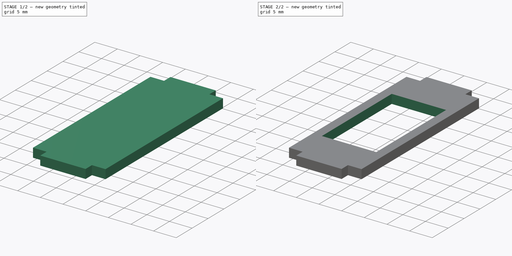
[diagram: build sequence overview — one tinted view per stage of 2, left to right]
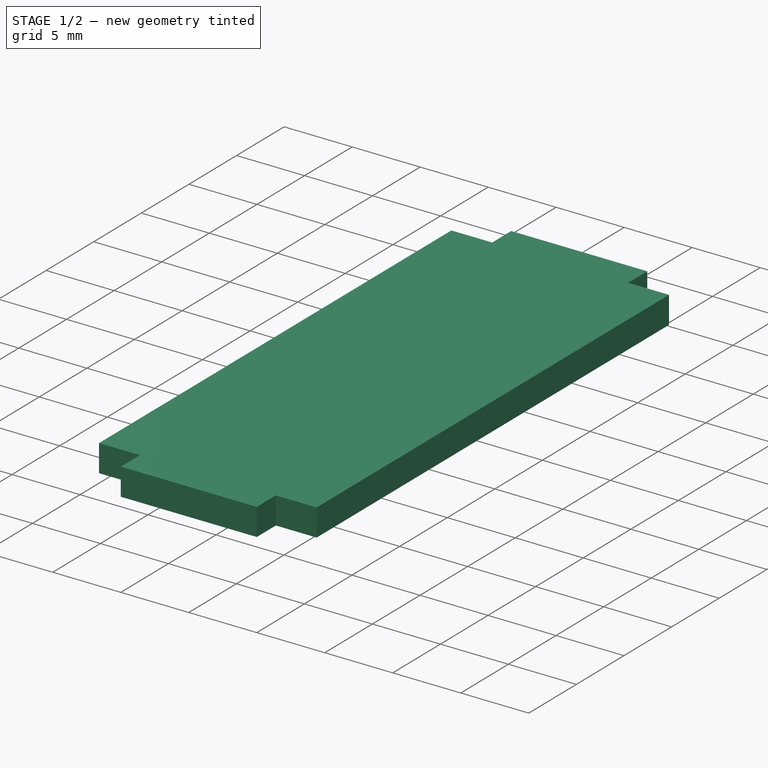
[diagram: stage 1 of 2 — iso view after this stage's code; geometry added in this stage tinted green]
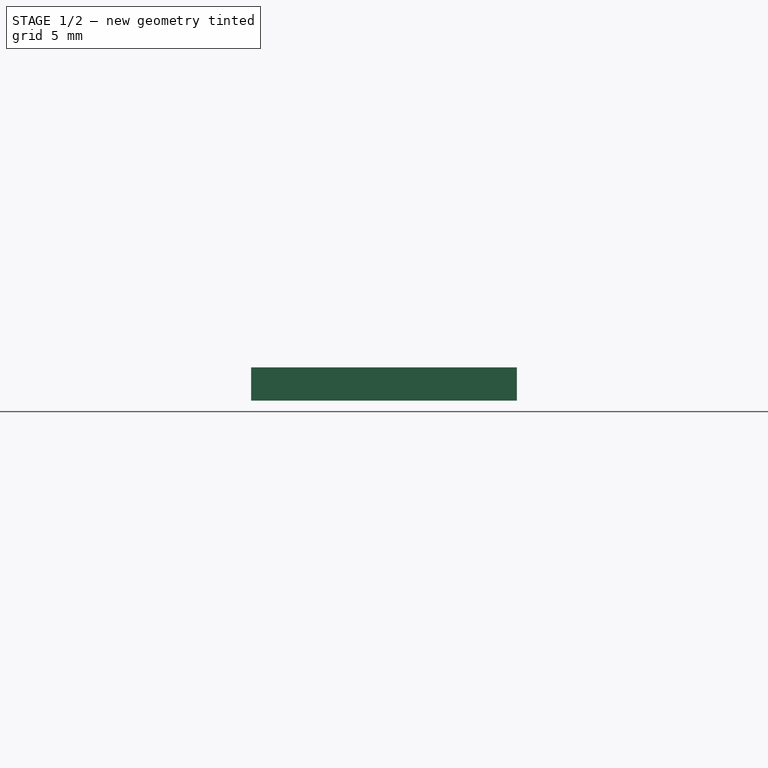
[diagram: stage 1 of 2 — front view after this stage's code; geometry added in this stage tinted green]
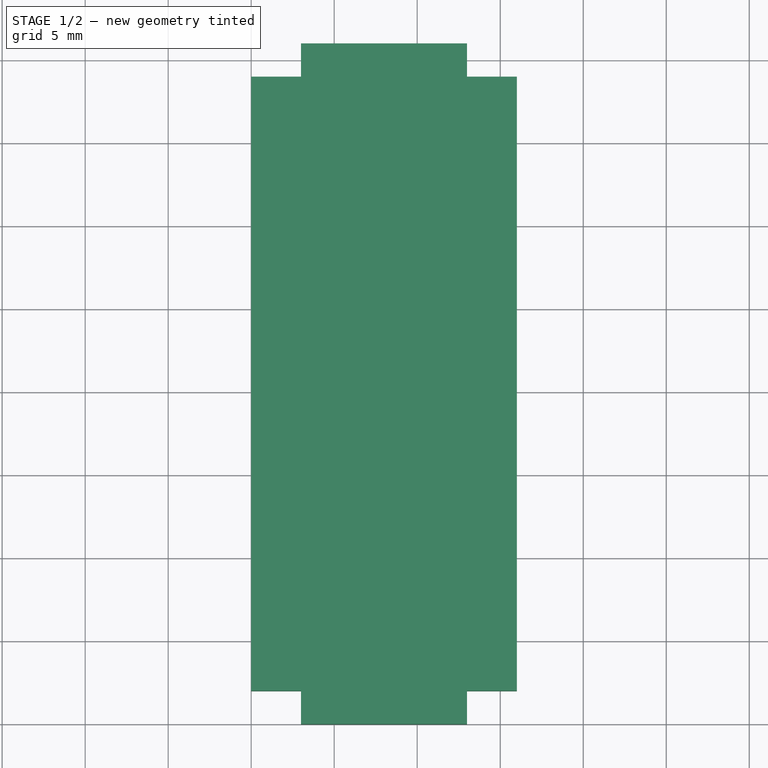
[diagram: stage 1 of 2 — top view after this stage's code; geometry added in this stage tinted green]
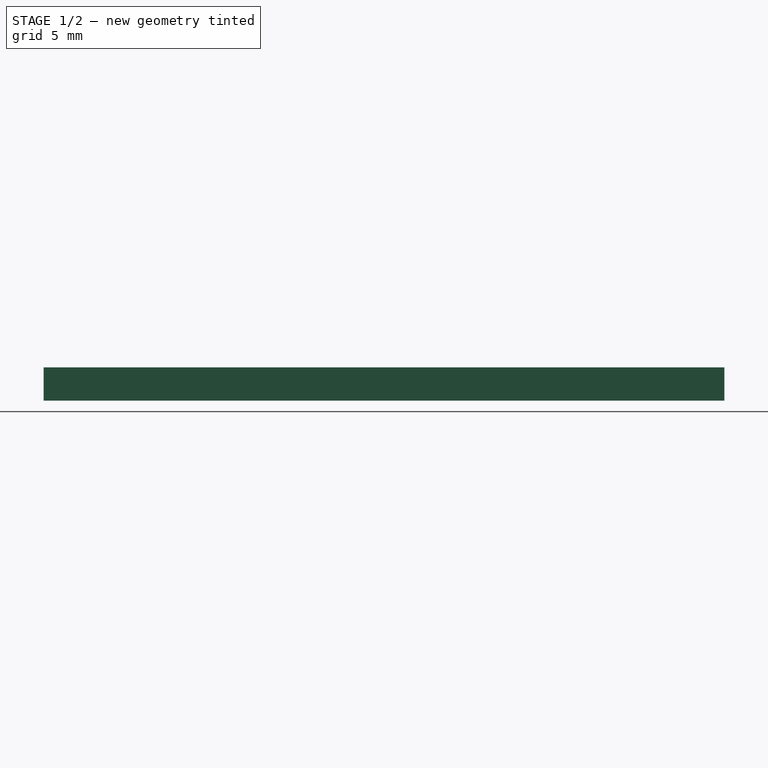
[diagram: stage 1 of 2 — right view after this stage's code; geometry added in this stage tinted green]
FCSTD DOCUMENT  (FreeCAD 0.18R16131 (Git))
Label: hip_V_topServo_10
License: All rights reserved
LicenseURL: http://en.wikipedia.org/wiki/All_rights_reserved
objects: Sketcher::SketchObject×2, PartDesign::Pad×1, PartDesign::Pocket×1, PartDesign::Body×1
note: 7 computed .brp shape members not serialized (recipe doc carries the construction recipe); baked Part::Feature solids carry a one-line shape summary decoded from their .brp

FEATURE [Sketcher::SketchObject] Sketch
  MapMode = 5
  Support = -> [XY_Plane]
  sketch-geometry (12):
    g0: LineSegment StartX=0 StartY=39 StartZ=0 EndX=0 EndY=2 EndZ=0
    g1: LineSegment StartX=0 StartY=2 StartZ=0 EndX=3 EndY=2 EndZ=0
    g2: LineSegment StartX=3 StartY=2 StartZ=0 EndX=3 EndY=0 EndZ=0
    g3: LineSegment StartX=3 StartY=0 StartZ=0 EndX=13 EndY=0 EndZ=0
    g4: LineSegment StartX=13 StartY=0 StartZ=0 EndX=13 EndY=2 EndZ=0
    g5: LineSegment StartX=13 StartY=2 StartZ=0 EndX=16 EndY=2 EndZ=0
    g6: LineSegment StartX=16 StartY=2 StartZ=0 EndX=16 EndY=39 EndZ=0
    g7: LineSegment StartX=16 StartY=39 StartZ=0 EndX=13 EndY=39 EndZ=0
    g8: LineSegment StartX=13 StartY=39 StartZ=0 EndX=13 EndY=41 EndZ=0
    g9: LineSegment StartX=13 StartY=41 StartZ=0 EndX=3 EndY=41 EndZ=0
    g10: LineSegment StartX=3 StartY=41 StartZ=0 EndX=3 EndY=39 EndZ=0
    g11: LineSegment StartX=3 StartY=39 StartZ=0 EndX=0 EndY=39 EndZ=0
  constraints (36):
    c: Coincident(g0,g1)
    c: Coincident(g1,g2)
    c: Coincident(g2,g3)
    c: Coincident(g3,g4)
    c: Coincident(g4,g5)
    c: Coincident(g5,g6)
    c: Coincident(g6,g7)
    c: Coincident(g7,g8)
    c: Coincident(g8,g9)
    c: Coincident(g9,g10)
    c: Coincident(g10,g11)
    c: Coincident(g11,g0)
    c: Vertical(g0)
    c: Vertical(g10)
    c: Vertical(g8)
    c: Vertical(g6)
    c: Vertical(g4)
    c: Vertical(g2)
    c: Horizontal(g11)
    c: Horizontal(g9)
    c: Horizontal(g7)
    c: Horizontal(g5)
    c: Horizontal(g1)
    c: Horizontal(g3)
    c: PointOnObject(g2,g-1)
    c: PointOnObject(g0,g-2)
    c: Equal(g4,g2)
    c: Equal(g2,g10)
    c: Equal(g10,g8)
    c: DistanceY(g8,g8) = 2
    c: Vertical(g10,g2)
    c: DistanceY(g0,g0) = 37
    c: Equal(g3,g9)
    c: DistanceX(g9,g9) = 10
    c: DistanceX(g0,g5) = 16
    c: DistanceX(g1,g1) = 3
FEATURE [PartDesign::Pad] Pad
  Length = 2
  Length2 = 100
  Profile = -> Sketch
  Type = 0
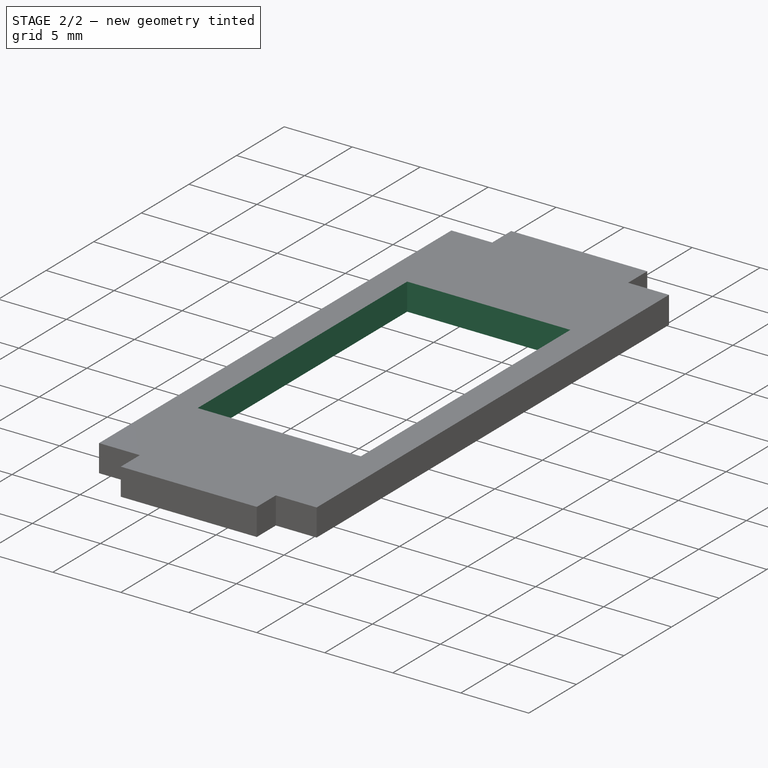
[diagram: stage 2 of 2 — iso view after this stage's code; geometry added in this stage tinted green]
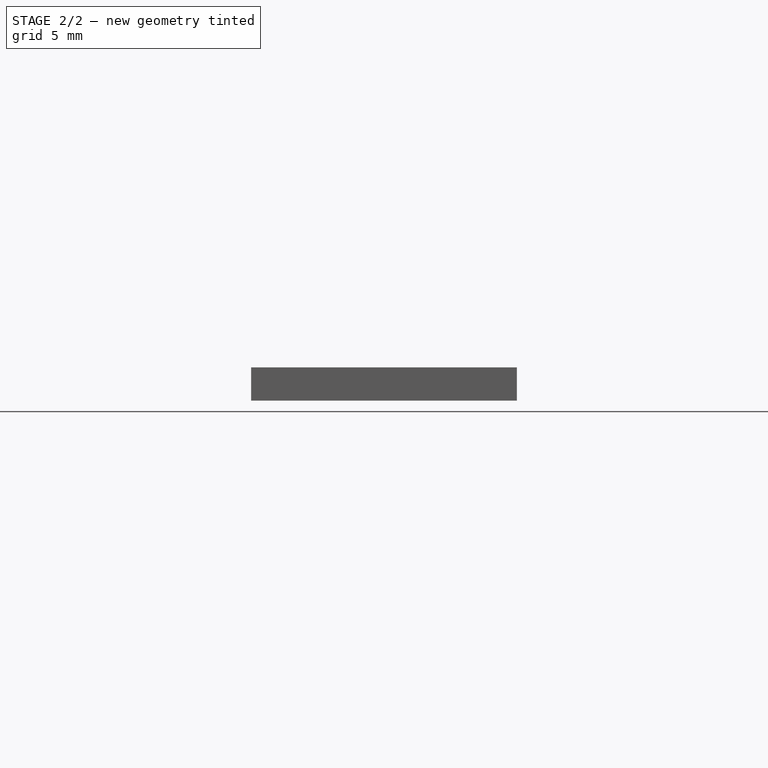
[diagram: stage 2 of 2 — front view after this stage's code; geometry added in this stage tinted green]
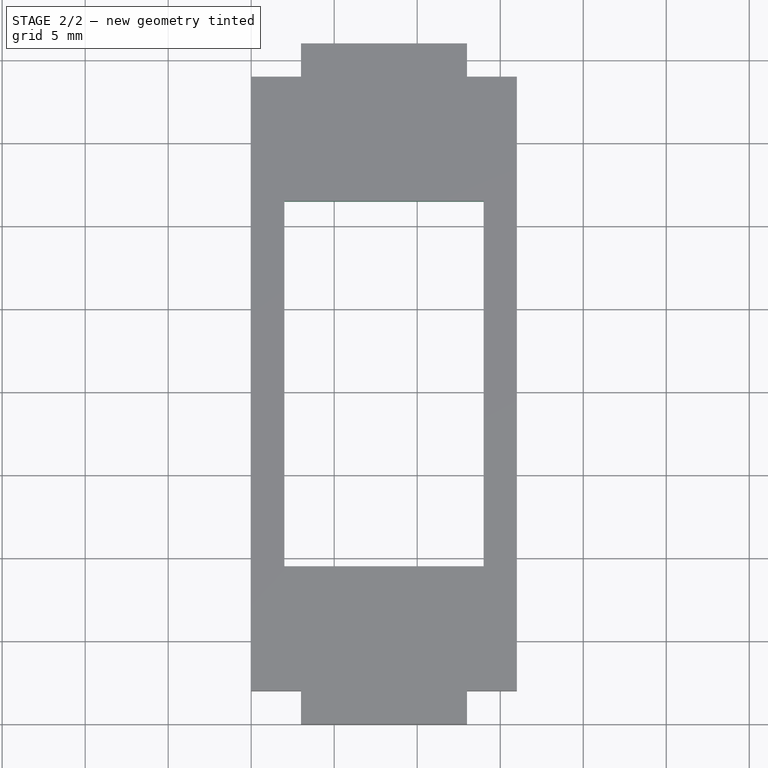
[diagram: stage 2 of 2 — top view after this stage's code; geometry added in this stage tinted green]
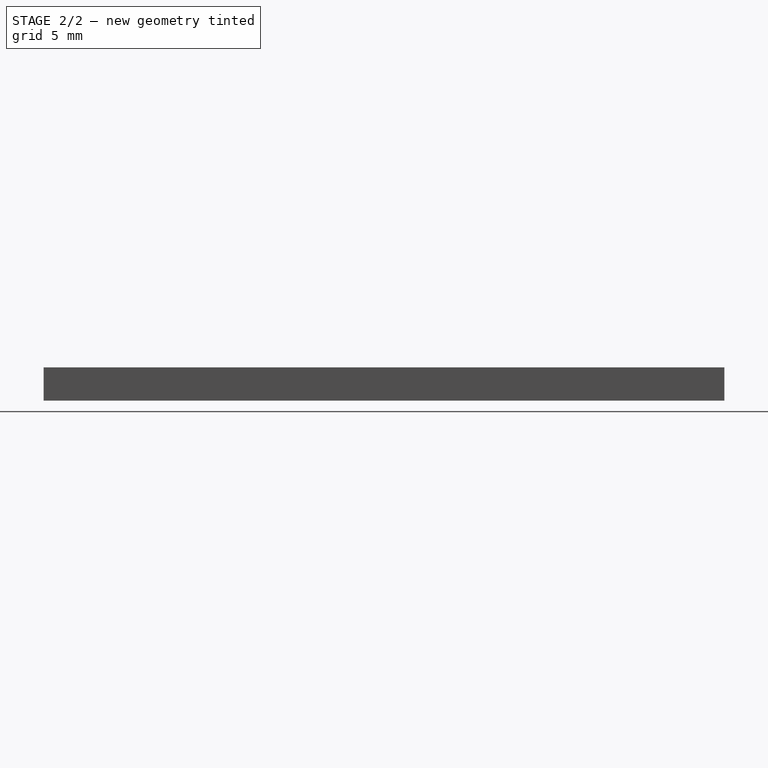
[diagram: stage 2 of 2 — right view after this stage's code; geometry added in this stage tinted green]
FEATURE [Sketcher::SketchObject] Sketch001
  MapMode = 5
  Support = -> [XY_Plane]
  sketch-geometry (4):
    g0: LineSegment StartX=2 StartY=31.5 StartZ=0 EndX=14 EndY=31.5 EndZ=0
    g1: LineSegment StartX=14 StartY=31.5 StartZ=0 EndX=14 EndY=9.5 EndZ=0
    g2: LineSegment StartX=14 StartY=9.5 StartZ=0 EndX=2 EndY=9.5 EndZ=0
    g3: LineSegment StartX=2 StartY=9.5 StartZ=0 EndX=2 EndY=31.5 EndZ=0
  constraints (12):
    c: Coincident(g0,g1)
    c: Coincident(g1,g2)
    c: Coincident(g2,g3)
    c: Coincident(g3,g0)
    c: Horizontal(g0)
    c: Horizontal(g2)
    c: Vertical(g1)
    c: Vertical(g3)
    c: DistanceX(g0,g0) = 12
    c: DistanceX(g-1,g2) = 2
    c: DistanceY(g1,g1) = 22
    c: DistanceY(g-1,g2) = 9.5
FEATURE [PartDesign::Pocket] Pocket  label="Trou_servo"
  BaseFeature = -> Pad
  Length = 5
  Length2 = 100
  Midplane = true
  Profile = -> Sketch001
  Type = 1
FEATURE [PartDesign::Body] Body
  Group = -> [Sketch,Pad,Sketch001,Pocket]
  Origin = -> Origin
  Tip = -> Pocket
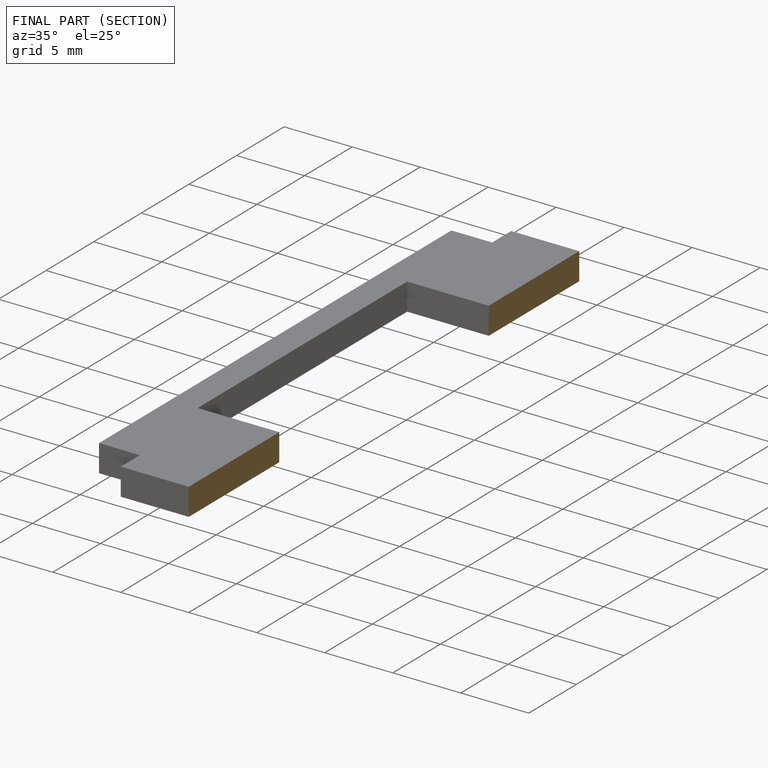
[diagram: finished part — half-section view (interior)]
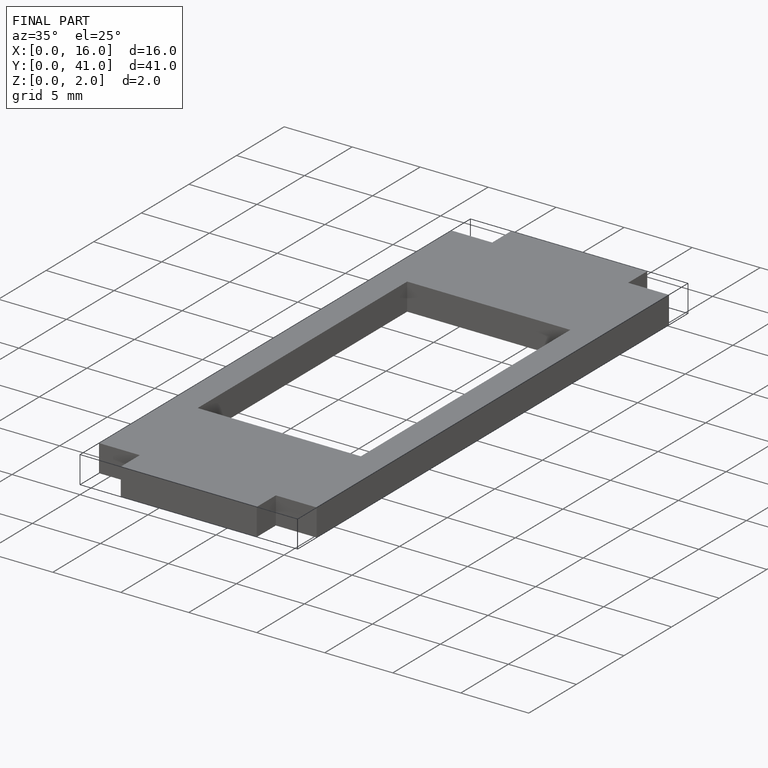
[diagram: finished part — iso view with bounding-box wireframe]
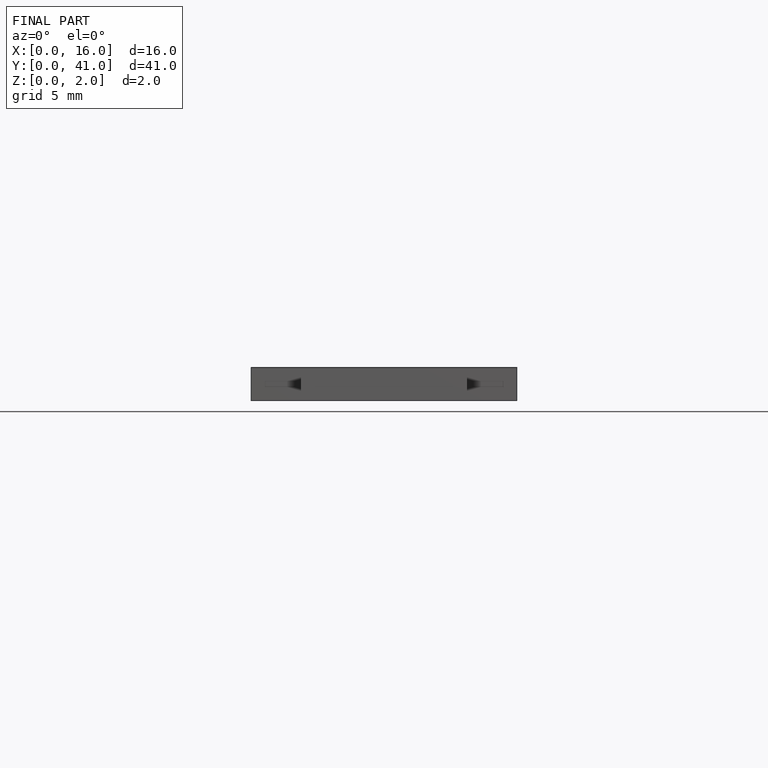
[diagram: finished part — front view with bounding-box wireframe]
